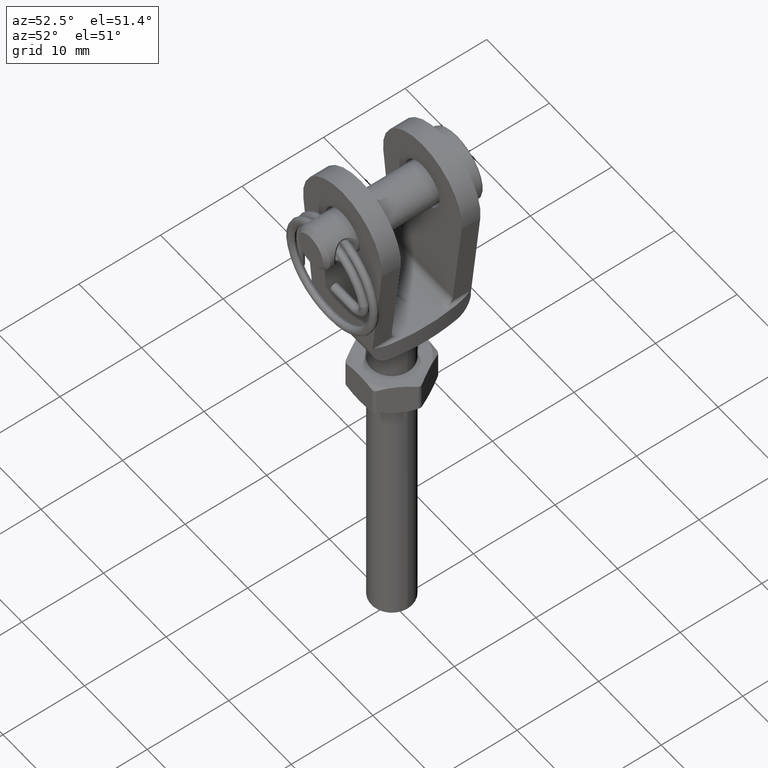
[diagram: clean part render]
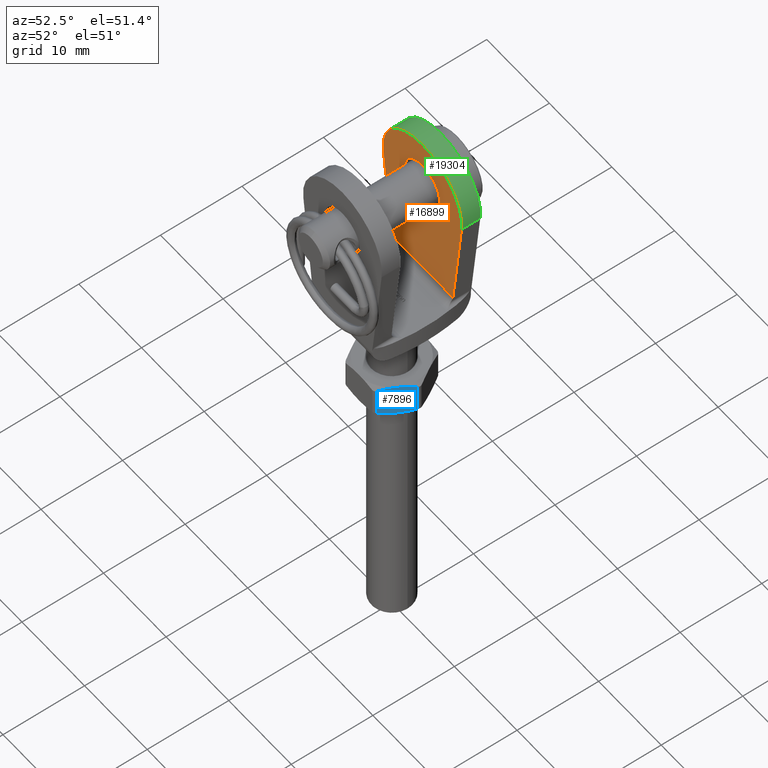
[diagram: same view with three faces highlighted in distinct colors, each labeled with its STEP entity id]
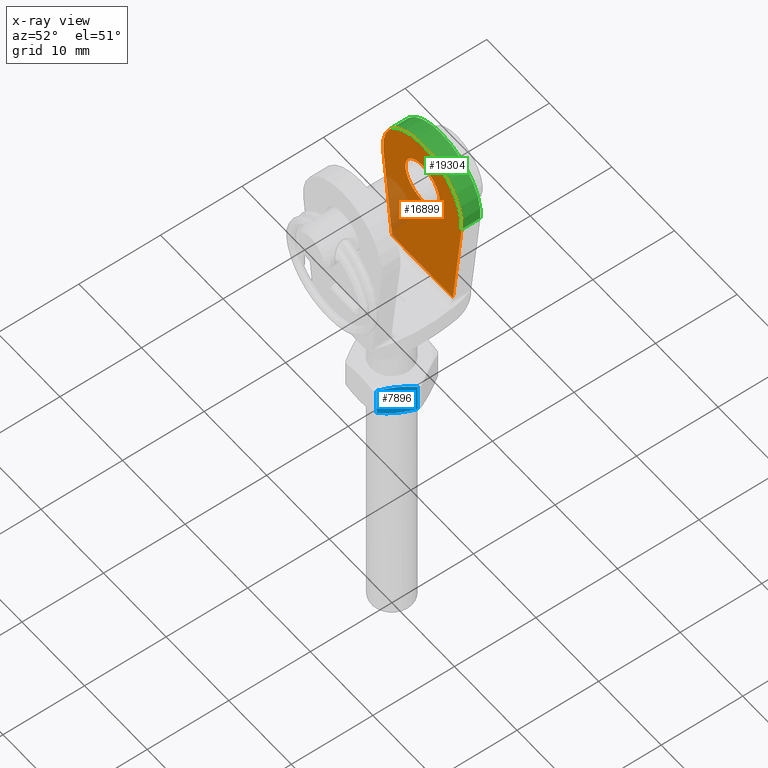
[diagram: x-ray of the same camera — body ghosted, the three highlighted faces saturated]
A machine part, auxiliary view with three faces highlighted in distinct colors.
The next image is the same camera in x-ray (body ghosted, the three faces saturated) — at least one of them is partly hidden behind the body in this view.
Their STEP definitions:

[orange] entity #16899 — the highlighted planar face has unit normal (0, -1, 0).
#13 = VECTOR ( 'NONE', #3550, 1000.000000000000114 ) ;
#202 = VERTEX_POINT ( 'NONE', #17606 ) ;
#514 = LINE ( 'NONE', #3611, #13 ) ;
#644 = CARTESIAN_POINT ( 'NONE',  ( 4.865504154288830208, 3.750000000000000000, 0.9999999999999993339 ) ) ;
#819 = DIRECTION ( 'NONE',  ( 1.000000000000000000, -0.000000000000000000, -1.224646799147353207E-16 ) ) ;
#959 = ORIENTED_EDGE ( 'NONE', *, *, #12426, .T. ) ;
#1645 = VERTEX_POINT ( 'NONE', #10413 ) ;
#2212 = AXIS2_PLACEMENT_3D ( 'NONE', #2367, #5317, #16579 ) ;
#2367 = CARTESIAN_POINT ( 'NONE',  ( 1.127575862101384866E-15, 3.750000000000000000, 13.70844685294129306 ) ) ;
#2653 = EDGE_CURVE ( 'NONE', #202, #19954, #13257, .T. ) ;
#2702 = EDGE_CURVE ( 'NONE', #19637, #19637, #6580, .T. ) ;
#3083 = AXIS2_PLACEMENT_3D ( 'NONE', #12782, #4763, #17317 ) ;
#3550 = DIRECTION ( 'NONE',  ( -0.1147412963749135095, -0.000000000000000000, 0.9933954071296102750 ) ) ;
#3611 = CARTESIAN_POINT ( 'NONE',  ( -6.249999999999998224, 3.750000000000000000, 12.98654588863615089 ) ) ;
#4102 = ORIENTED_EDGE ( 'NONE', *, *, #2653, .F. ) ;
#4763 = DIRECTION ( 'NONE',  ( -0.000000000000000000, -1.000000000000000000, 0.000000000000000000 ) ) ;
#5152 = ORIENTED_EDGE ( 'NONE', *, *, #2702, .F. ) ;
#5317 = DIRECTION ( 'NONE',  ( 0.000000000000000000, -1.000000000000000000, 0.000000000000000000 ) ) ;
#5615 = DIRECTION ( 'NONE',  ( -0.1147412963749134818, -0.000000000000000000, -0.9933954071296102750 ) ) ;
#6165 = VERTEX_POINT ( 'NONE', #644 ) ;
#6580 = CIRCLE ( 'NONE', #3083, 2.750000000000000888 ) ;
#6902 = CARTESIAN_POINT ( 'NONE',  ( 1.127575862101384866E-15, 3.750000000000000000, 13.70844685294129306 ) ) ;
#7091 = EDGE_LOOP ( 'NONE', ( #17272, #959, #17503, #4102 ) ) ;
#7419 = CARTESIAN_POINT ( 'NONE',  ( 4.750000000000000888, 3.750000000000000000, 8.641114077848020547E-16 ) ) ;
#7672 = DIRECTION ( 'NONE',  ( 0.000000000000000000, 0.000000000000000000, -1.000000000000000000 ) ) ;
#7817 = CARTESIAN_POINT ( 'NONE',  ( 0.000000000000000000, 3.750000000000000000, 11.25000000000000000 ) ) ;
#9518 = CARTESIAN_POINT ( 'NONE',  ( 6.250000000000000000, 3.750000000000000000, 12.98654588863615267 ) ) ;
#10413 = CARTESIAN_POINT ( 'NONE',  ( -4.865504154288828431, 3.750000000000000000, 1.000000000000000888 ) ) ;
#10649 = VECTOR ( 'NONE', #819, 1000.000000000000000 ) ;
#10664 = DIRECTION ( 'NONE',  ( 0.000000000000000000, 1.000000000000000000, -0.000000000000000000 ) ) ;
#10897 = EDGE_CURVE ( 'NONE', #1645, #202, #514, .T. ) ;
#11832 = PLANE ( 'NONE',  #2212 ) ;
#12426 = EDGE_CURVE ( 'NONE', #1645, #6165, #14338, .T. ) ;
#12782 = CARTESIAN_POINT ( 'NONE',  ( 0.000000000000000000, 3.750000000000000000, 14.00000000000000000 ) ) ;
#13257 = CIRCLE ( 'NONE', #14717, 6.291553147058736251 ) ;
#13289 = FACE_OUTER_BOUND ( 'NONE', #7091, .T. ) ;
#14338 = LINE ( 'NONE', #19759, #10649 ) ;
#14717 = AXIS2_PLACEMENT_3D ( 'NONE', #6902, #10664, #7672 ) ;
#15763 = EDGE_CURVE ( 'NONE', #19954, #6165, #18468, .T. ) ;
#16579 = DIRECTION ( 'NONE',  ( 0.000000000000000000, -0.000000000000000000, -1.000000000000000000 ) ) ;
#16899 = ADVANCED_FACE ( 'NONE', ( #17459, #13289 ), #11832, .T. ) ;
#17002 = VECTOR ( 'NONE', #5615, 1000.000000000000227 ) ;
#17234 = EDGE_LOOP ( 'NONE', ( #5152 ) ) ;
#17272 = ORIENTED_EDGE ( 'NONE', *, *, #10897, .F. ) ;
#17317 = DIRECTION ( 'NONE',  ( 0.000000000000000000, 0.000000000000000000, -1.000000000000000000 ) ) ;
#17459 = FACE_BOUND ( 'NONE', #17234, .T. ) ;
#17503 = ORIENTED_EDGE ( 'NONE', *, *, #15763, .F. ) ;
#17606 = CARTESIAN_POINT ( 'NONE',  ( -6.249999999999998224, 3.750000000000000000, 12.98654588863615267 ) ) ;
#18468 = LINE ( 'NONE', #7419, #17002 ) ;
#19637 = VERTEX_POINT ( 'NONE', #7817 ) ;
#19759 = CARTESIAN_POINT ( 'NONE',  ( -4.287600139574961418E-16, 3.750000000000000000, 0.9999999999999991118 ) ) ;
#19954 = VERTEX_POINT ( 'NONE', #9518 ) ;

[blue] entity #7896 — the highlighted planar face has unit normal (-0.866, 0.5, 0).
#64 = CARTESIAN_POINT ( 'NONE',  ( 2.618897511130730216, -1.808031168384832910, -3.463936450905896525 ) ) ;
#851 = ORIENTED_EDGE ( 'NONE', *, *, #4522, .T. ) ;
#1213 = CARTESIAN_POINT ( 'NONE',  ( 4.143403249520808629, -1.894410877657315861, -0.8234150555839729879 ) ) ;
#1464 = CARTESIAN_POINT ( 'NONE',  ( 3.293077073406436295, -2.000000000000002665, -2.296223195619827351 ) ) ;
#1629 = VERTEX_POINT ( 'NONE', #15022 ) ;
#1891 = CARTESIAN_POINT ( 'NONE',  ( 3.464101615137754830, -2.000000000000000000, -1.999999999999999556 ) ) ;
#2064 = CARTESIAN_POINT ( 'NONE',  ( 2.453738644055909468, -1.722038627381836218, -3.750000000000000888 ) ) ;
#2181 = B_SPLINE_CURVE_WITH_KNOTS ( 'NONE', 3,
 ( #13244, #16620, #10355, #7092, #3788, #14832 ),
 .UNSPECIFIED., .F., .F.,
 ( 4, 2, 4 ),
 ( 0.002336974151641546451, 0.003352693107047605061, 0.004368412062453663237 ),
 .UNSPECIFIED. ) ;
#2496 = EDGE_LOOP ( 'NONE', ( #11538, #18431, #851, #13847, #19542, #5074 ) ) ;
#3108 = CARTESIAN_POINT ( 'NONE',  ( 3.464101615137754830, 2.000000000000000000, -1.999999999999999556 ) ) ;
#3771 = AXIS2_PLACEMENT_3D ( 'NONE', #11185, #7977, #12771 ) ;
#3788 = CARTESIAN_POINT ( 'NONE',  ( 4.309305719144780333, 1.808031168384832910, -0.5360635490941036974 ) ) ;
#4130 = EDGE_CURVE ( 'NONE', #12176, #18443, #15489, .T. ) ;
#4522 = EDGE_CURVE ( 'NONE', #12235, #12176, #4781, .T. ) ;
#4781 = B_SPLINE_CURVE_WITH_KNOTS ( 'NONE', 3,
 ( #13921, #1213, #13988, #18793 ),
 .UNSPECIFIED., .F., .F.,
 ( 4, 4 ),
 ( 0.0002972568722511865092, 0.002336974151641547752 ),
 .UNSPECIFIED. ) ;
#5074 = ORIENTED_EDGE ( 'NONE', *, *, #7057, .T. ) ;
#5491 = DIRECTION ( 'NONE',  ( 0.000000000000000000, -1.000000000000000000, 0.000000000000000000 ) ) ;
#5673 = VERTEX_POINT ( 'NONE', #9026 ) ;
#6126 = CARTESIAN_POINT ( 'NONE',  ( 3.120658469656895750, 2.000000000000002665, -2.594860977484117370 ) ) ;
#7057 = EDGE_CURVE ( 'NONE', #14623, #5673, #10713, .T. ) ;
#7065 = EDGE_CURVE ( 'NONE', #18443, #14623, #14428, .T. ) ;
#7092 = CARTESIAN_POINT ( 'NONE',  ( 4.142813534267777875, 1.877925064878678496, -0.8244364723642202408 ) ) ;
#7896 = ADVANCED_FACE ( 'NONE', ( #18346 ), #17242, .F. ) ;
#7937 = CARTESIAN_POINT ( 'NONE',  ( 2.785389696007730453, -1.877925064878677164, -3.175563527635779870 ) ) ;
#7977 = DIRECTION ( 'NONE',  ( -0.8660254037844387076, 0.000000000000000000, 0.4999999999999998890 ) ) ;
#8052 = EDGE_CURVE ( 'NONE', #1629, #12235, #18835, .T. ) ;
#8199 = CARTESIAN_POINT ( 'NONE',  ( 4.474464586219600193, 2.000000000000000000, -0.2499999999999995837 ) ) ;
#8476 = VECTOR ( 'NONE', #5491, 1000.000000000000000 ) ;
#9026 = CARTESIAN_POINT ( 'NONE',  ( 3.464101615137754830, 2.000000000000000000, -1.999999999999999556 ) ) ;
#9246 = CARTESIAN_POINT ( 'NONE',  ( 2.453738644055909912, 2.000000000000000000, -3.750000000000000444 ) ) ;
#9345 = CARTESIAN_POINT ( 'NONE',  ( 3.121991427988899392, -1.974036377689814437, -2.592552225928714815 ) ) ;
#10355 = CARTESIAN_POINT ( 'NONE',  ( 3.806211802286610268, 1.974036377689814881, -1.407447774071285407 ) ) ;
#10713 = B_SPLINE_CURVE_WITH_KNOTS ( 'NONE', 3,
 ( #20495, #18670, #6126, #3108 ),
 .UNSPECIFIED., .F., .F.,
 ( 4, 4 ),
 ( 0.0002972568722511855334, 0.002336974151641546451 ),
 .UNSPECIFIED. ) ;
#10951 = CARTESIAN_POINT ( 'NONE',  ( 3.464101615137754830, -2.000000000000000000, -1.999999999999999556 ) ) ;
#11009 = CARTESIAN_POINT ( 'NONE',  ( 2.453738644055909468, -1.722038627381836218, -3.750000000000000888 ) ) ;
#11185 = CARTESIAN_POINT ( 'NONE',  ( 4.618802153517006737, 2.000000000000000000, 8.175773004893053315E-16 ) ) ;
#11538 = ORIENTED_EDGE ( 'NONE', *, *, #17501, .T. ) ;
#11731 = VECTOR ( 'NONE', #17173, 1000.000000000000000 ) ;
#12176 = VERTEX_POINT ( 'NONE', #1891 ) ;
#12235 = VERTEX_POINT ( 'NONE', #19558 ) ;
#12771 = DIRECTION ( 'NONE',  ( 0.4999999999999998890, 0.000000000000000000, 0.8660254037844387076 ) ) ;
#13244 = CARTESIAN_POINT ( 'NONE',  ( 3.464101615137754830, 2.000000000000000000, -1.999999999999999556 ) ) ;
#13847 = ORIENTED_EDGE ( 'NONE', *, *, #4130, .T. ) ;
#13921 = CARTESIAN_POINT ( 'NONE',  ( 4.474464586222178575, -1.722038627380494180, -0.2499999999955326013 ) ) ;
#13988 = CARTESIAN_POINT ( 'NONE',  ( 3.807544760618613466, -2.000000000000002665, -1.405139022515882408 ) ) ;
#14428 = LINE ( 'NONE', #9246, #11731 ) ;
#14623 = VERTEX_POINT ( 'NONE', #17823 ) ;
#14832 = CARTESIAN_POINT ( 'NONE',  ( 4.474464586219600193, 1.722038627381836662, -0.2499999999999996392 ) ) ;
#15022 = CARTESIAN_POINT ( 'NONE',  ( 4.474464586219600193, 1.722038627381836662, -0.2499999999999996392 ) ) ;
#15489 = B_SPLINE_CURVE_WITH_KNOTS ( 'NONE', 3,
 ( #10951, #1464, #9345, #7937, #64, #11009 ),
 .UNSPECIFIED., .F., .F.,
 ( 4, 2, 4 ),
 ( 0.002336974151641547752, 0.003352693107047606362, 0.004368412062453664972 ),
 .UNSPECIFIED. ) ;
#16620 = CARTESIAN_POINT ( 'NONE',  ( 3.635126156869072922, 2.000000000000003109, -1.703776804380171983 ) ) ;
#17173 = DIRECTION ( 'NONE',  ( -0.000000000000000000, 1.000000000000000000, -0.000000000000000000 ) ) ;
#17242 = PLANE ( 'NONE',  #3771 ) ;
#17501 = EDGE_CURVE ( 'NONE', #5673, #1629, #2181, .T. ) ;
#17823 = CARTESIAN_POINT ( 'NONE',  ( 2.453738644053331086, 1.722038627380493736, -3.750000000004467093 ) ) ;
#18346 = FACE_OUTER_BOUND ( 'NONE', #2496, .T. ) ;
#18431 = ORIENTED_EDGE ( 'NONE', *, *, #8052, .T. ) ;
#18443 = VERTEX_POINT ( 'NONE', #2064 ) ;
#18670 = CARTESIAN_POINT ( 'NONE',  ( 2.784799980754701032, 1.894410877657316306, -3.176584944416026790 ) ) ;
#18793 = CARTESIAN_POINT ( 'NONE',  ( 3.464101615137754830, -2.000000000000000000, -1.999999999999999556 ) ) ;
#18835 = LINE ( 'NONE', #8199, #8476 ) ;
#19542 = ORIENTED_EDGE ( 'NONE', *, *, #7065, .T. ) ;
#19558 = CARTESIAN_POINT ( 'NONE',  ( 4.474464586222178575, -1.722038627380494180, -0.2499999999955326013 ) ) ;
#20495 = CARTESIAN_POINT ( 'NONE',  ( 2.453738644053331086, 1.722038627380493736, -3.750000000004467093 ) ) ;

[green] entity #19304 — the highlighted cylindrical surface (partial cylindrical patch) has radius 6.2916 mm, axis along (-0, -1, -0).
#202 = VERTEX_POINT ( 'NONE', #17606 ) ;
#511 = CARTESIAN_POINT ( 'NONE',  ( 6.250000000000000000, 6.049999999999999822, 12.98654588863615267 ) ) ;
#952 = ORIENTED_EDGE ( 'NONE', *, *, #2842, .T. ) ;
#2548 = ORIENTED_EDGE ( 'NONE', *, *, #17353, .F. ) ;
#2653 = EDGE_CURVE ( 'NONE', #202, #19954, #13257, .T. ) ;
#2842 = EDGE_CURVE ( 'NONE', #13521, #202, #19444, .T. ) ;
#5158 = VERTEX_POINT ( 'NONE', #5797 ) ;
#5294 = DIRECTION ( 'NONE',  ( 0.000000000000000000, 0.000000000000000000, -1.000000000000000000 ) ) ;
#5426 = DIRECTION ( 'NONE',  ( -0.000000000000000000, -1.000000000000000000, -0.000000000000000000 ) ) ;
#5797 = CARTESIAN_POINT ( 'NONE',  ( 6.250000000000000000, 6.049999999999999822, 12.98654588863615267 ) ) ;
#6337 = CARTESIAN_POINT ( 'NONE',  ( -6.249999999999998224, 6.049999999999999822, 12.98654588863615267 ) ) ;
#6340 = EDGE_LOOP ( 'NONE', ( #9957, #11323, #2548, #952 ) ) ;
#6680 = CARTESIAN_POINT ( 'NONE',  ( -6.249999999999998224, 6.049999999999999822, 12.98654588863615267 ) ) ;
#6902 = CARTESIAN_POINT ( 'NONE',  ( 1.127575862101384866E-15, 3.750000000000000000, 13.70844685294129306 ) ) ;
#7672 = DIRECTION ( 'NONE',  ( 0.000000000000000000, 0.000000000000000000, -1.000000000000000000 ) ) ;
#7801 = CARTESIAN_POINT ( 'NONE',  ( 1.127575862101384866E-15, 6.049999999999999822, 13.70844685294129306 ) ) ;
#8415 = CARTESIAN_POINT ( 'NONE',  ( 1.127575862101384866E-15, 6.049999999999999822, 13.70844685294129306 ) ) ;
#9058 = CIRCLE ( 'NONE', #19411, 6.291553147058736251 ) ;
#9406 = DIRECTION ( 'NONE',  ( 0.000000000000000000, 0.000000000000000000, -1.000000000000000000 ) ) ;
#9518 = CARTESIAN_POINT ( 'NONE',  ( 6.250000000000000000, 3.750000000000000000, 12.98654588863615267 ) ) ;
#9957 = ORIENTED_EDGE ( 'NONE', *, *, #2653, .T. ) ;
#10048 = FACE_OUTER_BOUND ( 'NONE', #6340, .T. ) ;
#10664 = DIRECTION ( 'NONE',  ( 0.000000000000000000, 1.000000000000000000, -0.000000000000000000 ) ) ;
#11323 = ORIENTED_EDGE ( 'NONE', *, *, #13508, .F. ) ;
#12698 = AXIS2_PLACEMENT_3D ( 'NONE', #7801, #20516, #9406 ) ;
#12894 = DIRECTION ( 'NONE',  ( -0.000000000000000000, -1.000000000000000000, -0.000000000000000000 ) ) ;
#13257 = CIRCLE ( 'NONE', #14717, 6.291553147058736251 ) ;
#13508 = EDGE_CURVE ( 'NONE', #5158, #19954, #15301, .T. ) ;
#13521 = VERTEX_POINT ( 'NONE', #6680 ) ;
#14717 = AXIS2_PLACEMENT_3D ( 'NONE', #6902, #10664, #7672 ) ;
#15301 = LINE ( 'NONE', #511, #17277 ) ;
#15949 = CYLINDRICAL_SURFACE ( 'NONE', #12698, 6.291553147058736251 ) ;
#16148 = DIRECTION ( 'NONE',  ( 0.000000000000000000, 1.000000000000000000, -0.000000000000000000 ) ) ;
#17277 = VECTOR ( 'NONE', #12894, 1000.000000000000000 ) ;
#17353 = EDGE_CURVE ( 'NONE', #13521, #5158, #9058, .T. ) ;
#17606 = CARTESIAN_POINT ( 'NONE',  ( -6.249999999999998224, 3.750000000000000000, 12.98654588863615267 ) ) ;
#17929 = VECTOR ( 'NONE', #5426, 1000.000000000000000 ) ;
#19304 = ADVANCED_FACE ( 'NONE', ( #10048 ), #15949, .T. ) ;
#19411 = AXIS2_PLACEMENT_3D ( 'NONE', #8415, #16148, #5294 ) ;
#19444 = LINE ( 'NONE', #6337, #17929 ) ;
#19954 = VERTEX_POINT ( 'NONE', #9518 ) ;
#20516 = DIRECTION ( 'NONE',  ( -0.000000000000000000, -1.000000000000000000, -0.000000000000000000 ) ) ;